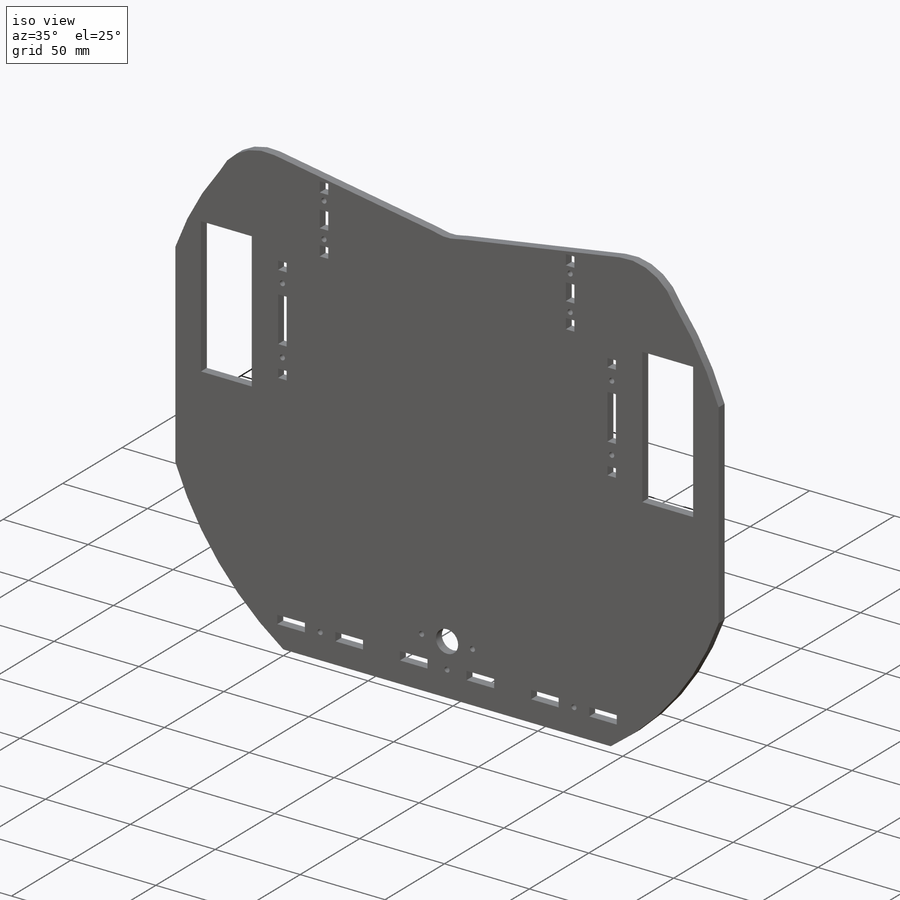
[diagram: iso view]
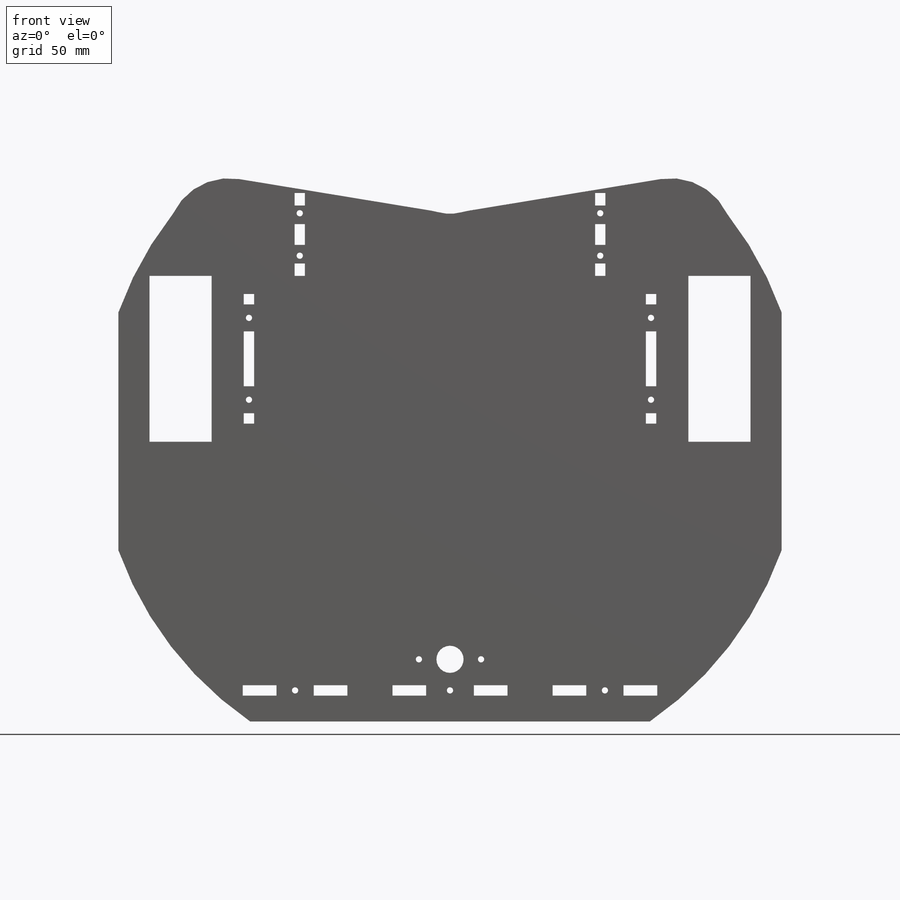
[diagram: front view]
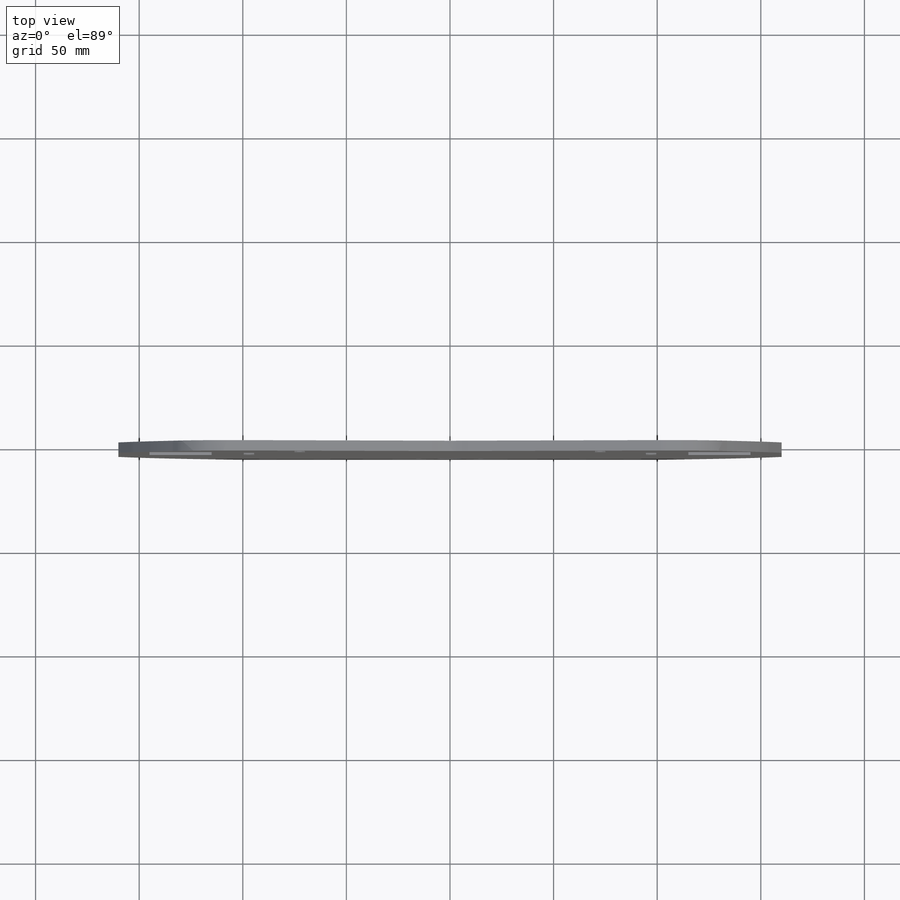
[diagram: top view]
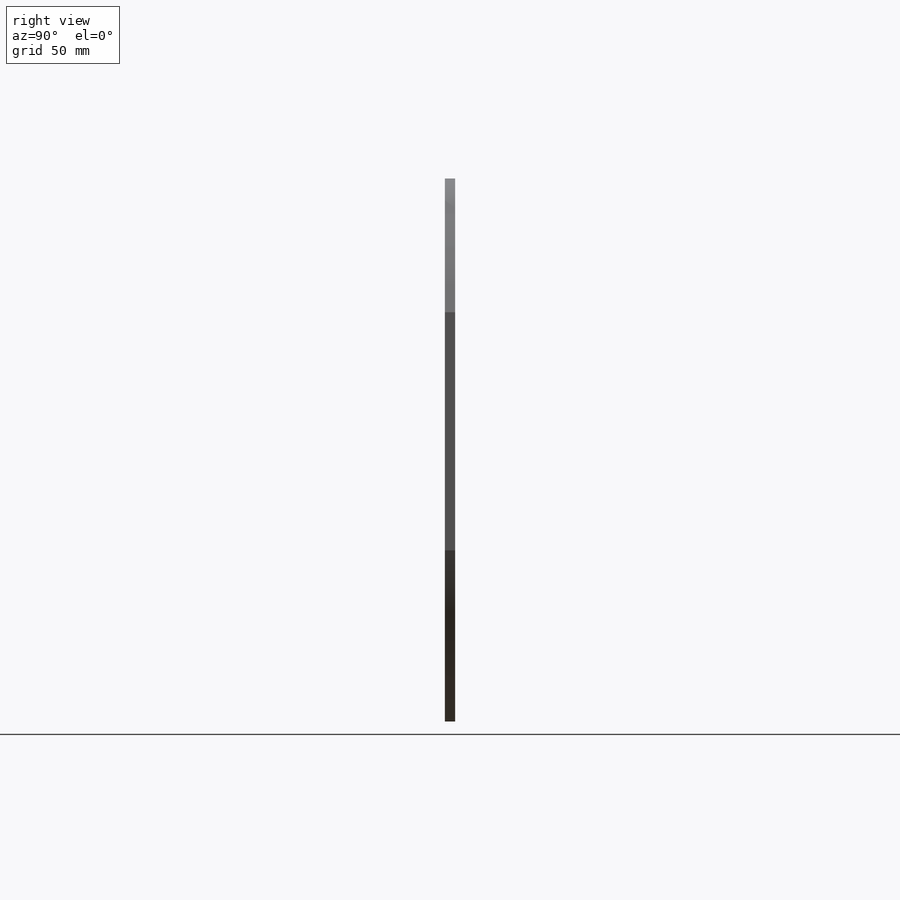
[diagram: right view]
SOLIDWORKS PART (.sldprt)
format: sldprt  version: not decoded by parser v0  size: 937,984 bytes
history: native  units: mm
features: sketch x8, extrude x4, cut_extrude x4, mirror x2, material x1, fillet x1 (+12 scaffold rows collapsed)
feature tree (32):
  scaffold x12  (default folders/planes/origin — collapsed)
  material  "Material <not specified>"
  sketch  "Sketch1"  dims[c1.D1=325.0mm c1.D8=340.0mm c1.D2=300.0mm c1.D3=250.0mm c1.D4=30.0mm c1.D5=80.0mm c1.D6=35.0mm c2.D1=30.0mm c2.D2=15.0mm c2.D3=260.0mm c2.D7=5.0mm c2.D9=140.0mm]
  extrude  "Boss-Extrude1"  Depth=5mm
  sketch  "Sketch2"  dims[D3=3.0mm D1=5.0mm D2=18.0mm D4=62.5mm D5=13.0mm D6=5.0mm]
  cut_extrude  "Cut-Extrude1"  Depth=5mm
  mirror  "Mirror1"
  sketch  "Sketch3"  dims[D2=43.0mm D1=22.0mm]
  extrude  "Boss-Extrude2"  Depth=5mm
  fillet  "Fillet1"  Radius=30mm
  sketch  "Sketch4"
  extrude  "Boss-Extrude3"  Depth=5mm
  sketch  "Sketch5"  dims[D1=13.1mm D3=3.0mm D2=30.0mm D4=30.0mm]
  cut_extrude  "Cut-Extrude2"  Depth=5mm
  sketch  "Sketch6"  dims[D4=3.0mm D1=200.0mm D2=5.0mm D3=15.0mm D5=16.25mm D6=18.0mm D7=23.0mm D8=18.0mm]
  cut_extrude  "Cut-Extrude3"  Depth=10mm
  sketch  "Sketch7"  dims[c1.D2=3.0mm c1.D9=3.0mm c1.D1=5.0mm c1.D3=35.0mm c1.D4=65.0mm c1.D5=5.5mm c1.D6=~9.034476mm c1.D7=19.0mm c2.D6=5.0mm c2.D8=3.0mm c2.D7=10.0mm c2.D10=5.0mm c2.D11=50.0mm c2.D12=10.0mm c2.D13=20.5mm c2.D14=70.0mm c2.D15=40.0mm c3.D11=40.0mm c3.D16=6.0mm]
  cut_extrude  "Cut-Extrude4"  Depth=10mm
  mirror  "Mirror2"
  sketch  "Sketch8"
  extrude  "Boss-Extrude4"  Depth=5mm
decode coverage: 15 of 19 modeling features carry decoded parameters
note: ~ marks probable driven/reference dimensions
note: suppression state not decoded; provenance and decode notes live in map.json
